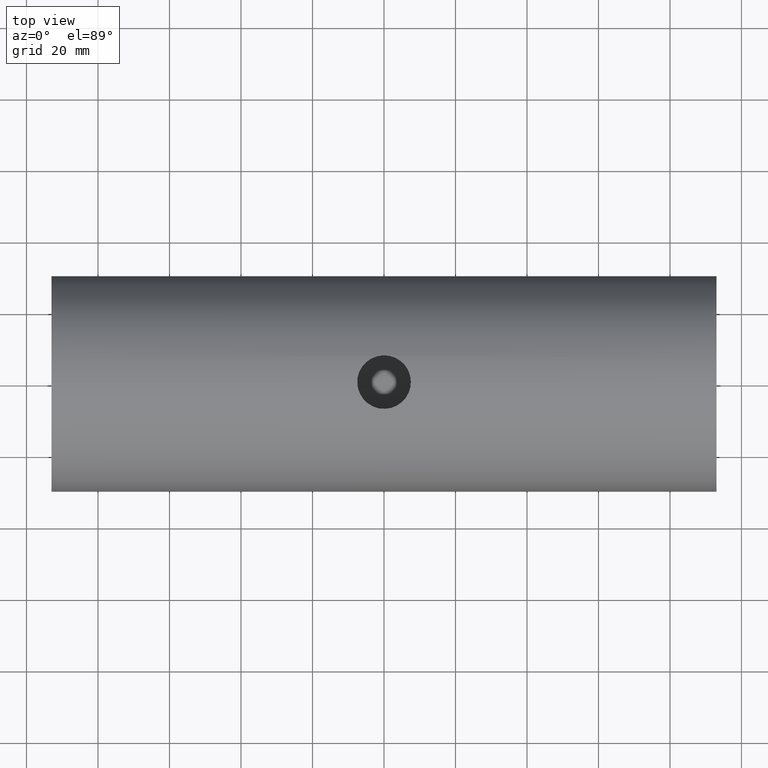
[diagram: clean part render]
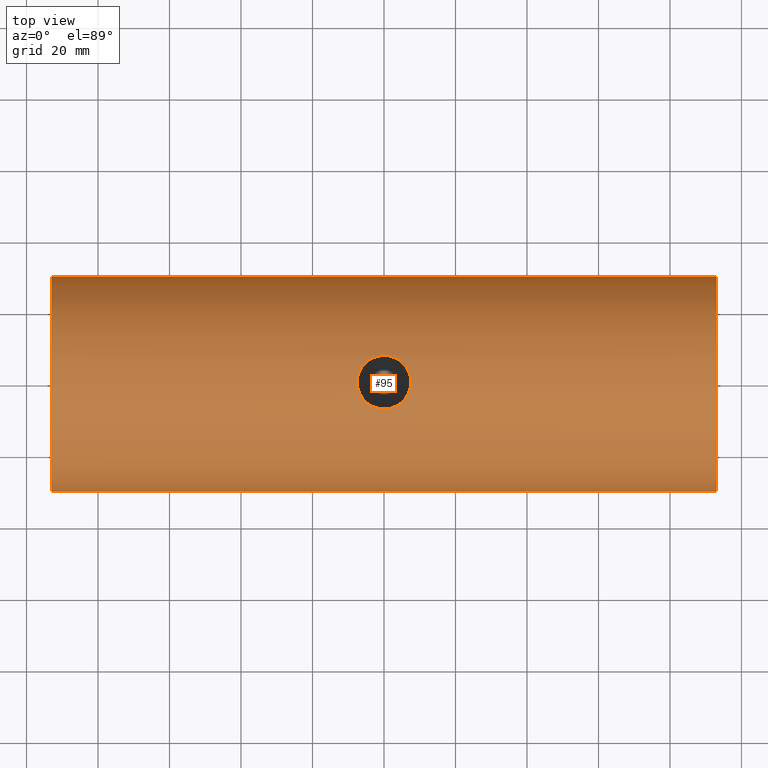
[diagram: same view with one face highlighted and labeled with its STEP entity id]
A machine part, top view. The second image highlights one B-rep face of the part: STEP entity #95.
In plain terms, the highlighted cylindrical surface (partial cylindrical patch) has radius 30.15 mm, axis along (1, 0, -0).
Its self-contained STEP definition (entity closure, byte-faithful):
#2 = AXIS2_PLACEMENT_3D ( 'NONE', #445, #294, #103 ) ;
#3 = CARTESIAN_POINT ( 'NONE',  ( 3.766071702715712899, 6.504168345304149668, 29.44138299919343638 ) ) ;
#6 = CARTESIAN_POINT ( 'NONE',  ( -4.569512397707423013, 5.952257490680894492, 29.55703187231505424 ) ) ;
#16 = CARTESIAN_POINT ( 'NONE',  ( -4.580762961181150672, -5.958988755115056435, 29.55658047178147640 ) ) ;
#19 = CARTESIAN_POINT ( 'NONE',  ( 6.739165421114840626, -3.327752276682596655, 29.96924127577451458 ) ) ;
#26 = VERTEX_POINT ( 'NONE', #159 ) ;
#37 = CARTESIAN_POINT ( 'NONE',  ( 4.373605053020555467, 6.097618742075153975, 29.52728789388904573 ) ) ;
#38 = EDGE_CURVE ( 'NONE', #101, #86, #308, .T. ) ;
#40 = CARTESIAN_POINT ( 'NONE',  ( 5.960044983881700453, 4.579051822030483443, 29.80308120121776838 ) ) ;
#41 = CARTESIAN_POINT ( 'NONE',  ( 5.651066934731677094, 4.955251831151683106, 29.74208184411044442 ) ) ;
#43 = CARTESIAN_POINT ( 'NONE',  ( -1.943605517665027094, 7.260406665600704024, 29.26292426905375876 ) ) ;
#45 = CARTESIAN_POINT ( 'NONE',  ( -4.947585292974384430, 5.641915681478429256, 29.61783735824583630 ) ) ;
#46 = FACE_OUTER_BOUND ( 'NONE', #208, .T. ) ;
#48 = ORIENTED_EDGE ( 'NONE', *, *, #462, .F. ) ;
#54 = CARTESIAN_POINT ( 'NONE',  ( -2.421546531487737131, -7.102577172028079922, 29.30155876653483915 ) ) ;
#57 = CARTESIAN_POINT ( 'NONE',  ( 7.257568485236807199, -1.954565999791516573, 30.09046388291749352 ) ) ;
#66 = VERTEX_POINT ( 'NONE', #119 ) ;
#70 = EDGE_CURVE ( 'NONE', #26, #66, #259, .T. ) ;
#76 = CARTESIAN_POINT ( 'NONE',  ( 7.500000000000000000, 0.4905005296950472049, 30.15000000000000213 ) ) ;
#78 = CARTESIAN_POINT ( 'NONE',  ( -7.257630751728805230, 1.954404536453142160, 30.09047882440297528 ) ) ;
#79 = CARTESIAN_POINT ( 'NONE',  ( -6.735591639686338006, 3.334789017853641013, 29.96843749655610267 ) ) ;
#80 = CARTESIAN_POINT ( 'NONE',  ( -93.00000000000001421, 30.14999999999998082, 0.000000000000000000 ) ) ;
#81 = CARTESIAN_POINT ( 'NONE',  ( -5.636234865242546910, 4.954054242681979581, 29.74082073236647261 ) ) ;
#86 = VERTEX_POINT ( 'NONE', #113 ) ;
#89 = CARTESIAN_POINT ( 'NONE',  ( -3.761507082169246452, -6.507226810316928400, 29.44073700516980452 ) ) ;
#91 = CARTESIAN_POINT ( 'NONE',  ( 5.130747045207877832, -5.475928573975543223, 29.64907860583657850 ) ) ;
#95 = ADVANCED_FACE ( 'NONE', ( #371, #46 ), #198, .T. ) ;
#96 = CARTESIAN_POINT ( 'NONE',  ( 3.326732777487045656, -6.726292422648419311, 29.39036565159637959 ) ) ;
#101 = VERTEX_POINT ( 'NONE', #80 ) ;
#103 = DIRECTION ( 'NONE',  ( 4.602914695792523219E-16, -1.000000000000000000, 0.000000000000000000 ) ) ;
#113 = CARTESIAN_POINT ( 'NONE',  ( 92.99999999999998579, 30.15000000000004476, 0.000000000000000000 ) ) ;
#115 = CARTESIAN_POINT ( 'NONE',  ( -7.500000000000000000, 0.000000000000000000, 30.14999999999999503 ) ) ;
#118 = CARTESIAN_POINT ( 'NONE',  ( -7.103786089475316423, -2.418084485709030229, 30.05380866094377623 ) ) ;
#119 = CARTESIAN_POINT ( 'NONE',  ( 93.00000000000001421, -30.14999999999995950, 3.692310099429269608E-15 ) ) ;
#121 = CARTESIAN_POINT ( 'NONE',  ( 5.132662113620228617, 5.474079756465464186, 29.64941507184972380 ) ) ;
#126 = CARTESIAN_POINT ( 'NONE',  ( -2.651822549129052131, -7.019787900416890380, 29.32156775765682610 ) ) ;
#134 = CARTESIAN_POINT ( 'NONE',  ( 3.102363331110137956, -6.832721081049528244, 29.36572565191767481 ) ) ;
#138 = CARTESIAN_POINT ( 'NONE',  ( 7.500000000000000888, -0.2453163262941969458, 30.14999999999999503 ) ) ;
#149 = CARTESIAN_POINT ( 'NONE',  ( -92.99999999999998579, -30.15000000000001634, 3.692310099429269608E-15 ) ) ;
#151 = DIRECTION ( 'NONE',  ( 1.000000000000000000, 3.061616997868383141E-16, -0.000000000000000000 ) ) ;
#154 = VECTOR ( 'NONE', #269, 1000.000000000000000 ) ;
#155 = CARTESIAN_POINT ( 'NONE',  ( -7.500000000000004441, 0.4975133919157953000, 30.15000000000000924 ) ) ;
#157 = CARTESIAN_POINT ( 'NONE',  ( -7.307132511443547251, -1.707592623641839502, 30.10256673535183225 ) ) ;
#159 = CARTESIAN_POINT ( 'NONE',  ( -92.99999999999998579, -30.15000000000001990, 3.692310099429272763E-15 ) ) ;
#161 = CARTESIAN_POINT ( 'NONE',  ( 3.336186395054809406, 6.735269054361809005, 29.38871611507167714 ) ) ;
#164 = CARTESIAN_POINT ( 'NONE',  ( -6.505207015342332255, 3.764868579568580564, 29.91686074839271114 ) ) ;
#165 = CARTESIAN_POINT ( 'NONE',  ( -93.00000000000001421, 30.14999999999998082, 0.000000000000000000 ) ) ;
#172 = CARTESIAN_POINT ( 'NONE',  ( -3.328092222977030890, -6.738853177729461130, 29.38787827632004479 ) ) ;
#174 = CARTESIAN_POINT ( 'NONE',  ( 7.402539458175037446, -1.230067767044769278, 30.12586753145299312 ) ) ;
#175 = AXIS2_PLACEMENT_3D ( 'NONE', #341, #227, #485 ) ;
#180 = ORIENTED_EDGE ( 'NONE', *, *, #70, .T. ) ;
#189 = CARTESIAN_POINT ( 'NONE',  ( 7.452356891921847470, 0.9794373226105089758, 30.13803647814817666 ) ) ;
#191 = CARTESIAN_POINT ( 'NONE',  ( -0.9803910238065935978, 7.451841436761557524, 29.21476169554764013 ) ) ;
#193 = CARTESIAN_POINT ( 'NONE',  ( 0.2497314937825466374, 7.499921114505808895, 29.20228900758911905 ) ) ;
#195 = CARTESIAN_POINT ( 'NONE',  ( 1.474577045620115490, 7.365798283767518662, 29.23652853252231409 ) ) ;
#197 = CARTESIAN_POINT ( 'NONE',  ( 7.500000000000000000, 9.184921415273049910E-16, 30.14999999999999858 ) ) ;
#198 = CYLINDRICAL_SURFACE ( 'NONE', #313, 30.14999999999999858 ) ;
#205 = CARTESIAN_POINT ( 'NONE',  ( -5.950425103151749440, -4.571965928724423200, 29.80195665606953170 ) ) ;
#208 = EDGE_LOOP ( 'NONE', ( #248, #180, #289, #433 ) ) ;
#209 = CARTESIAN_POINT ( 'NONE',  ( -1.709318193299613986, -7.306795961031325781, 29.25125152650506877 ) ) ;
#211 = VERTEX_POINT ( 'NONE', #323 ) ;
#225 = CARTESIAN_POINT ( 'NONE',  ( 0.4990587722032245876, 7.487433760977843633, 29.20550415064895944 ) ) ;
#226 = B_SPLINE_CURVE_WITH_KNOTS ( 'NONE', 3,
 ( #304, #267, #486, #157, #305, #118, #268, #416, #238, #318, #205, #235, #384, #355, #16, #89, #172, #126, #54, #457, #209, #388, #274, #236, #243, #463, #429, #134, #96, #358, #281, #316, #322, #425, #91, #246, #393, #423, #19, #390, #57, #174, #468, #278, #138, #420 ),
 .UNSPECIFIED., .F., .F.,
 ( 4, 2, 2, 2, 2, 2, 2, 2, 2, 2, 2, 2, 2, 2, 2, 2, 2, 2, 2, 2, 2, 2, 4 ),
 ( 0.000000000000000000, 0.001471322269676322890, 0.002206983404514484878, 0.002942644539352647082, 0.004413966809028971490, 0.005149627943867134128, 0.005885289078705296766, 0.007356611348381623776, 0.008827933618057949919, 0.009563594752896115159, 0.01029925588773427866, 0.01177057815741060394, 0.01324190042708693268, 0.01471322269676325969, 0.01544888383160142320, 0.01618454496643958671, 0.01692020610127775021, 0.01765586723611591718, 0.01912718950579224073, 0.02059851177546856080, 0.02206983404514488434, 0.02280549517998304437, 0.02354115631482120788 ),
 .UNSPECIFIED. ) ;
#227 = DIRECTION ( 'NONE',  ( -1.000000000000000000, -3.061616997868383141E-16, 0.000000000000000000 ) ) ;
#229 = CARTESIAN_POINT ( 'NONE',  ( 2.652066994098781105, 7.019796142560697838, 29.32156984454651649 ) ) ;
#230 = CARTESIAN_POINT ( 'NONE',  ( -5.946970573337897470, 4.576389176574049422, 29.80127066718347706 ) ) ;
#232 = CARTESIAN_POINT ( 'NONE',  ( -3.326864187929616357, 6.739568182332551061, 29.38771701239393153 ) ) ;
#235 = CARTESIAN_POINT ( 'NONE',  ( -5.638263810258049347, -4.951809019698746539, 29.74120173120269328 ) ) ;
#236 = CARTESIAN_POINT ( 'NONE',  ( 0.4882143344692567721, -7.500204959943273408, 29.20221610775301002 ) ) ;
#238 = CARTESIAN_POINT ( 'NONE',  ( -6.506147090195717020, -3.762942013762233806, 29.91707855406400540 ) ) ;
#243 = CARTESIAN_POINT ( 'NONE',  ( 0.9874810106022189338, -7.450921503063904439, 29.21499814875050660 ) ) ;
#246 = CARTESIAN_POINT ( 'NONE',  ( 5.651803211857749254, -4.954649978676517463, 29.74220178934695724 ) ) ;
#248 = ORIENTED_EDGE ( 'NONE', *, *, #428, .F. ) ;
#254 = VERTEX_POINT ( 'NONE', #261 ) ;
#259 = LINE ( 'NONE', #149, #154 ) ;
#261 = CARTESIAN_POINT ( 'NONE',  ( 7.500000000000000000, 9.184921415273049910E-16, 30.14999999999999858 ) ) ;
#265 = CARTESIAN_POINT ( 'NONE',  ( 1.949317793693996936, 7.246404862537918490, 29.26632075175182024 ) ) ;
#267 = CARTESIAN_POINT ( 'NONE',  ( -7.500000000000002665, -0.4976474038176006975, 30.14999999999999503 ) ) ;
#268 = CARTESIAN_POINT ( 'NONE',  ( -7.019674602828236409, -2.652269279872598418, 30.03397924884832904 ) ) ;
#269 = DIRECTION ( 'NONE',  ( 1.000000000000000000, 3.061616997868383141E-16, -0.000000000000000000 ) ) ;
#270 = CARTESIAN_POINT ( 'NONE',  ( -2.422259537131511653, 7.114946475133408832, 29.29909942542335699 ) ) ;
#274 = CARTESIAN_POINT ( 'NONE',  ( -0.4944913900703654663, -7.499793726675769712, 29.20232172452015362 ) ) ;
#277 = EDGE_CURVE ( 'NONE', #66, #86, #382, .T. ) ;
#278 = CARTESIAN_POINT ( 'NONE',  ( 7.487994097889282052, -0.4910265475897015452, 30.14700650159188200 ) ) ;
#281 = CARTESIAN_POINT ( 'NONE',  ( 3.968391808847914870, -6.368773135371746719, 29.46999188444867457 ) ) ;
#289 = ORIENTED_EDGE ( 'NONE', *, *, #277, .T. ) ;
#294 = DIRECTION ( 'NONE',  ( -1.000000000000000000, -3.061616997868383141E-16, 0.000000000000000000 ) ) ;
#297 = B_SPLINE_CURVE_WITH_KNOTS ( 'NONE', 3,
 ( #197, #76, #189, #453, #309, #375, #377, #450, #449, #40, #41, #121, #345, #374, #37, #3, #161, #229, #307, #265, #195, #339, #225, #193, #410, #191, #43, #270, #232, #418, #381, #6, #45, #451, #455, #81, #230, #347, #164, #79, #483, #78, #342, #155, #115 ),
 .UNSPECIFIED., .F., .F.,
 ( 4, 2, 2, 2, 2, 2, 2, 2, 2, 2, 1, 2, 2, 2, 2, 2, 2, 2, 2, 2, 2, 2, 4 ),
 ( 0.02354115631482120788, 0.02501208237084502281, 0.02648300842686884121, 0.02721847145488074868, 0.02795393448289265614, 0.02942486053891647108, 0.03016032356692837854, 0.03089578659494028601, 0.03236671265096410094, 0.03310217567897601187, 0.03383763870698791587, 0.03457310173499981987, 0.03530856476301173080, 0.03677949081903554573, 0.03825041687505936067, 0.03972134293108317560, 0.04045680595909508653, 0.04119226898710699053, 0.04192773201511889453, 0.04266319504313080546, 0.04413412109915461345, 0.04560504715517842145, 0.04707597321120222944 ),
 .UNSPECIFIED. ) ;
#304 = CARTESIAN_POINT ( 'NONE',  ( -7.500000000000000000, 0.000000000000000000, 30.14999999999999503 ) ) ;
#305 = CARTESIAN_POINT ( 'NONE',  ( -7.247387241459818163, -1.945838522944582927, 30.08807504728859428 ) ) ;
#307 = CARTESIAN_POINT ( 'NONE',  ( 2.418854200822524891, 7.103475744154301275, 29.30134034696099476 ) ) ;
#308 = LINE ( 'NONE', #165, #413 ) ;
#309 = CARTESIAN_POINT ( 'NONE',  ( 7.114599166557021626, 2.423139489458612683, 30.05589392545645921 ) ) ;
#313 = AXIS2_PLACEMENT_3D ( 'NONE', #343, #151, #456 ) ;
#316 = CARTESIAN_POINT ( 'NONE',  ( 4.373520016750903849, -6.097682138439433075, 29.52727494127863039 ) ) ;
#318 = CARTESIAN_POINT ( 'NONE',  ( -6.097854961790203809, -4.373338027699252173, 29.83183903060156794 ) ) ;
#322 = CARTESIAN_POINT ( 'NONE',  ( 4.569358043913649858, -5.952378046291782354, 29.55700774842665268 ) ) ;
#323 = CARTESIAN_POINT ( 'NONE',  ( -7.500000000000000000, 0.000000000000000000, 30.14999999999999503 ) ) ;
#324 = ORIENTED_EDGE ( 'NONE', *, *, #378, .F. ) ;
#339 = CARTESIAN_POINT ( 'NONE',  ( 0.9894708228408799489, 7.438526162748265946, 29.21799899966995184 ) ) ;
#341 = CARTESIAN_POINT ( 'NONE',  ( -93.00000000000000000, -1.665519646840400224E-14, 0.000000000000000000 ) ) ;
#342 = CARTESIAN_POINT ( 'NONE',  ( -7.450976324025472941, 0.9878527417384330711, 30.13769665940967002 ) ) ;
#343 = CARTESIAN_POINT ( 'NONE',  ( -93.00000000000000000, -1.665519646840400224E-14, 0.000000000000000000 ) ) ;
#345 = CARTESIAN_POINT ( 'NONE',  ( 4.949586755817242611, 5.640208371252256825, 29.61816659592330225 ) ) ;
#347 = CARTESIAN_POINT ( 'NONE',  ( -6.094622180357131214, 4.377906909947874681, 29.83117503892306743 ) ) ;
#352 = CIRCLE ( 'NONE', #175, 30.14999999999999858 ) ;
#355 = CARTESIAN_POINT ( 'NONE',  ( -4.957126321087399923, -5.649266940963441286, 29.61807993672217520 ) ) ;
#358 = CARTESIAN_POINT ( 'NONE',  ( 3.759101971902038208, -6.494560269381323359, 29.44244028264110113 ) ) ;
#368 = EDGE_LOOP ( 'NONE', ( #48, #324 ) ) ;
#371 = FACE_BOUND ( 'NONE', #368, .T. ) ;
#374 = CARTESIAN_POINT ( 'NONE',  ( 4.569852832706333245, 5.952042053943451982, 29.55707932734727450 ) ) ;
#375 = CARTESIAN_POINT ( 'NONE',  ( 6.833441074414842831, 3.100623268640844810, 29.99100034188387198 ) ) ;
#377 = CARTESIAN_POINT ( 'NONE',  ( 6.728623476160133343, 3.322080036164986705, 29.96721609285990695 ) ) ;
#378 = EDGE_CURVE ( 'NONE', #254, #211, #297, .T. ) ;
#381 = CARTESIAN_POINT ( 'NONE',  ( -4.370823933417503859, 6.099701270060707614, 29.52686294514211696 ) ) ;
#382 = CIRCLE ( 'NONE', #2, 30.14999999999999858 ) ;
#384 = CARTESIAN_POINT ( 'NONE',  ( -5.473986375162748885, -5.132718845592711965, 29.71040712072420575 ) ) ;
#388 = CARTESIAN_POINT ( 'NONE',  ( -0.9824720388300031138, -7.451771084867824690, 29.21478290233838848 ) ) ;
#390 = CARTESIAN_POINT ( 'NONE',  ( 7.114978516646068840, -2.422264745188086987, 30.05598095828468885 ) ) ;
#393 = CARTESIAN_POINT ( 'NONE',  ( 5.960681814282246194, -4.578026129610321071, 29.80321719836157257 ) ) ;
#410 = CARTESIAN_POINT ( 'NONE',  ( -0.4923216240607274363, 7.500156637675628346, 29.20222851832733468 ) ) ;
#413 = VECTOR ( 'NONE', #454, 1000.000000000000000 ) ;
#416 = CARTESIAN_POINT ( 'NONE',  ( -6.736724030334007907, -3.332867352492587809, 29.96868803640765577 ) ) ;
#418 = CARTESIAN_POINT ( 'NONE',  ( -3.757469760982410811, 6.509473923364676118, 29.44023119986975701 ) ) ;
#420 = CARTESIAN_POINT ( 'NONE',  ( 7.500000000000000000, 9.184921415273049910E-16, 30.14999999999999858 ) ) ;
#423 = CARTESIAN_POINT ( 'NONE',  ( 6.503570272523809592, -3.767177278129411722, 29.91652476427125862 ) ) ;
#425 = CARTESIAN_POINT ( 'NONE',  ( 4.947514551057428989, -5.641979892425153409, 29.61782528039491069 ) ) ;
#428 = EDGE_CURVE ( 'NONE', #26, #101, #352, .T. ) ;
#429 = CARTESIAN_POINT ( 'NONE',  ( 2.419492786613014257, -7.116108282907822158, 29.29882565302554909 ) ) ;
#433 = ORIENTED_EDGE ( 'NONE', *, *, #38, .F. ) ;
#445 = CARTESIAN_POINT ( 'NONE',  ( 93.00000000000000000, 4.029087969194792054E-14, 0.000000000000000000 ) ) ;
#449 = CARTESIAN_POINT ( 'NONE',  ( 6.368696820196274366, 3.968584604377915603, 29.88837654351102913 ) ) ;
#450 = CARTESIAN_POINT ( 'NONE',  ( 6.496317215688701019, 3.756121974026643162, 29.91591221806685752 ) ) ;
#451 = CARTESIAN_POINT ( 'NONE',  ( -5.128100828469233541, 5.478302099230385913, 29.64862936944260596 ) ) ;
#453 = CARTESIAN_POINT ( 'NONE',  ( 7.257997931275147252, 1.954069277969235019, 30.09056585516481164 ) ) ;
#454 = DIRECTION ( 'NONE',  ( 1.000000000000000000, 3.061616997868383141E-16, -0.000000000000000000 ) ) ;
#455 = CARTESIAN_POINT ( 'NONE',  ( -5.472425698879174405, 5.134371331295159990, 29.71012030284261840 ) ) ;
#456 = DIRECTION ( 'NONE',  ( -4.602914695792523219E-16, 1.000000000000000000, 0.000000000000000000 ) ) ;
#457 = CARTESIAN_POINT ( 'NONE',  ( -1.951015065975862273, -7.245966484956295695, 29.26642988702583992 ) ) ;
#462 = EDGE_CURVE ( 'NONE', #211, #254, #226, .T. ) ;
#463 = CARTESIAN_POINT ( 'NONE',  ( 1.950991102233632146, -7.258442237155660059, 29.26341340934427748 ) ) ;
#468 = CARTESIAN_POINT ( 'NONE',  ( 7.439380027435277931, -0.9832535216614703977, 30.13496840200106419 ) ) ;
#483 = CARTESIAN_POINT ( 'NONE',  ( -7.111511599213518942, 2.432162680509113883, 30.05516009729652538 ) ) ;
#485 = DIRECTION ( 'NONE',  ( 4.602914695792523219E-16, -1.000000000000000000, 0.000000000000000000 ) ) ;
#486 = CARTESIAN_POINT ( 'NONE',  ( -7.450963695277314613, -0.9865963937217632207, 30.13769589823354522 ) ) ;